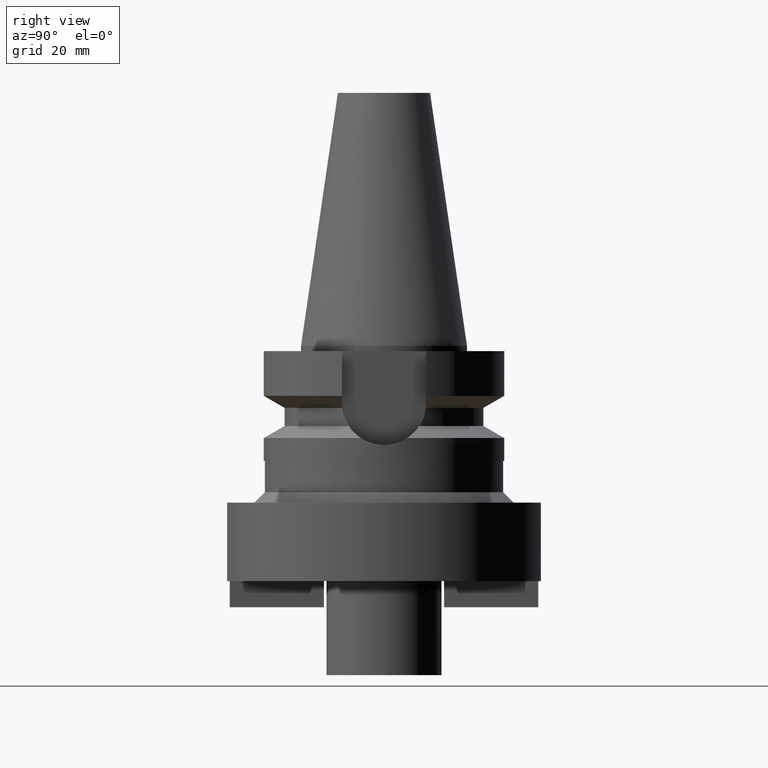
[diagram: clean part render]
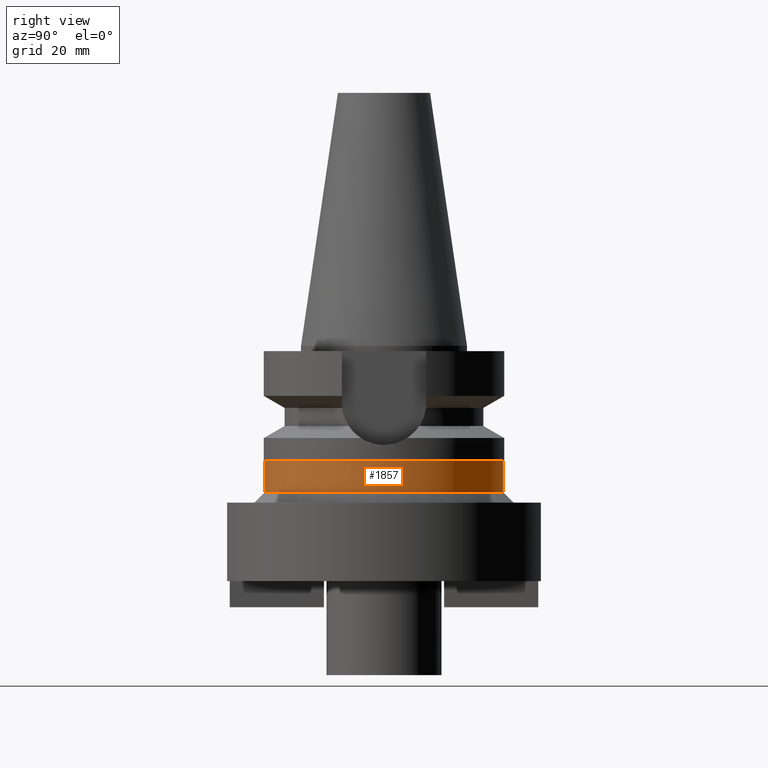
[diagram: same view with one face highlighted and labeled with its STEP entity id]
A machine part, right view. The second image highlights one B-rep face of the part: STEP entity #1857.
In plain terms, the highlighted cylindrical surface (partial cylindrical patch) has radius 22.8 mm, axis along (0, 0, -1).
Its self-contained STEP definition (entity closure, byte-faithful):
#641=CARTESIAN_POINT('',(0.E0,0.E0,-2.2E1));
#642=DIRECTION('',(0.E0,0.E0,-1.E0));
#643=DIRECTION('',(0.E0,1.E0,0.E0));
#644=AXIS2_PLACEMENT_3D('',#641,#642,#643);
#649=DIRECTION('',(0.E0,0.E0,-1.E0));
#650=VECTOR('',#649,6.E0);
#651=CARTESIAN_POINT('',(0.E0,-2.28E1,-2.2E1));
#652=LINE('',#651,#650);
#656=DIRECTION('',(0.E0,0.E0,-1.E0));
#657=VECTOR('',#656,6.E0);
#658=CARTESIAN_POINT('',(0.E0,2.28E1,-2.2E1));
#659=LINE('',#658,#657);
#670=CARTESIAN_POINT('',(0.E0,0.E0,-2.8E1));
#671=DIRECTION('',(0.E0,0.E0,1.E0));
#672=DIRECTION('',(0.E0,-1.E0,0.E0));
#673=AXIS2_PLACEMENT_3D('',#670,#671,#672);
#1297=CARTESIAN_POINT('',(0.E0,2.28E1,-2.8E1));
#1298=VERTEX_POINT('',#1297);
#1299=CARTESIAN_POINT('',(0.E0,-2.28E1,-2.8E1));
#1300=VERTEX_POINT('',#1299);
#1301=CARTESIAN_POINT('',(0.E0,2.28E1,-2.2E1));
#1302=VERTEX_POINT('',#1301);
#1303=CARTESIAN_POINT('',(0.E0,-2.28E1,-2.2E1));
#1304=VERTEX_POINT('',#1303);
#1845=CARTESIAN_POINT('',(0.E0,0.E0,5.397E1));
#1846=DIRECTION('',(0.E0,0.E0,-1.E0));
#1847=DIRECTION('',(0.E0,-1.E0,0.E0));
#1848=AXIS2_PLACEMENT_3D('',#1845,#1846,#1847);
#1849=CYLINDRICAL_SURFACE('',#1848,2.28E1);
#1850=ORIENTED_EDGE('',*,*,#1835,.T.);
#1852=ORIENTED_EDGE('',*,*,#1851,.F.);
#1853=ORIENTED_EDGE('',*,*,#1838,.F.);
#1854=ORIENTED_EDGE('',*,*,#1825,.F.);
#1855=EDGE_LOOP('',(#1850,#1852,#1853,#1854));
#1856=FACE_OUTER_BOUND('',#1855,.F.);
#645=CIRCLE('',#644,2.28E1);
#674=CIRCLE('',#673,2.28E1);
#1825=EDGE_CURVE('',#1302,#1304,#645,.T.);
#1835=EDGE_CURVE('',#1302,#1298,#659,.T.);
#1838=EDGE_CURVE('',#1304,#1300,#652,.T.);
#1851=EDGE_CURVE('',#1300,#1298,#674,.T.);
#1857=ADVANCED_FACE('',(#1856),#1849,.T.);